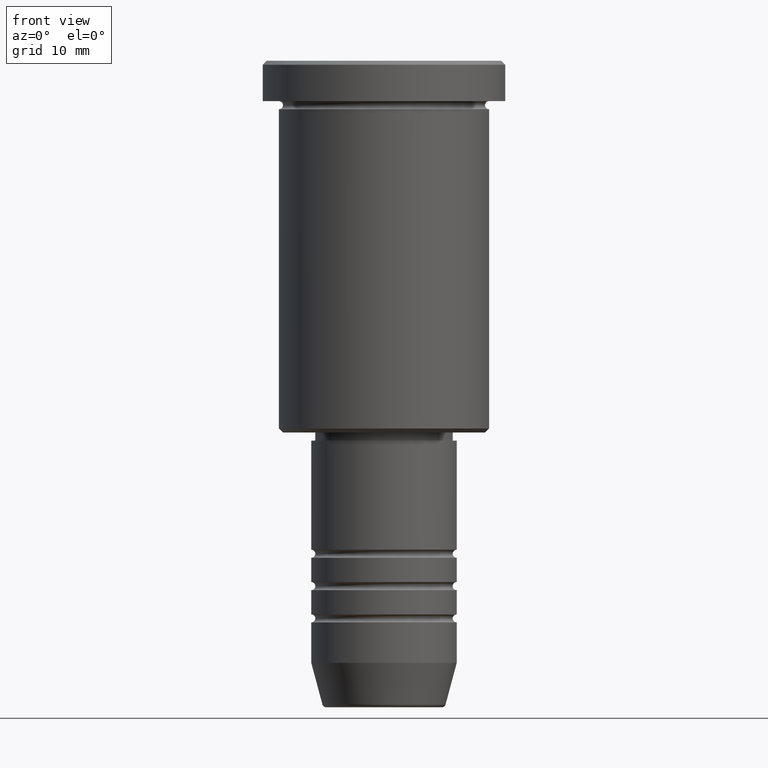
[diagram: clean part render]
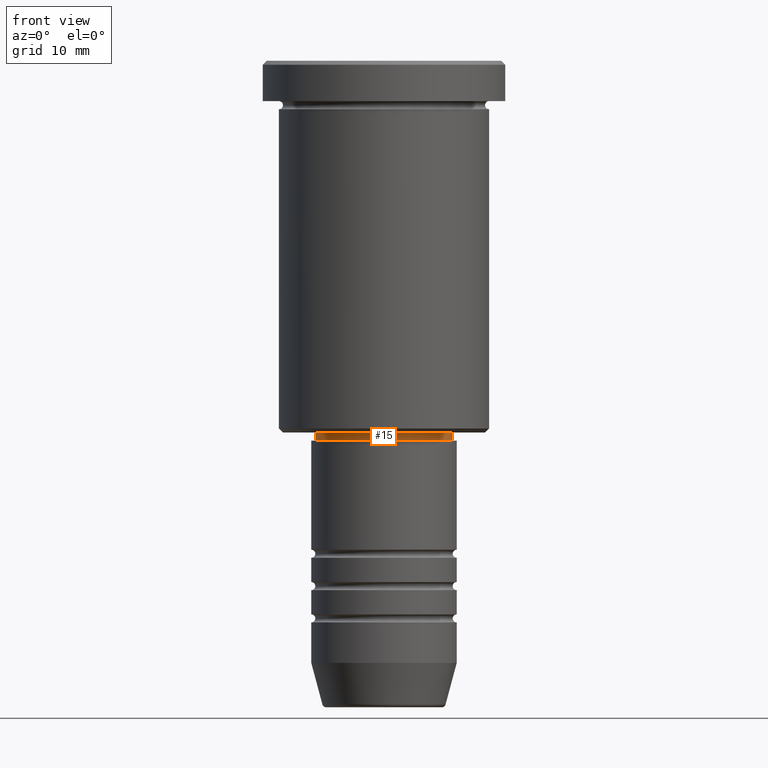
[diagram: same view with one face highlighted and labeled with its STEP entity id]
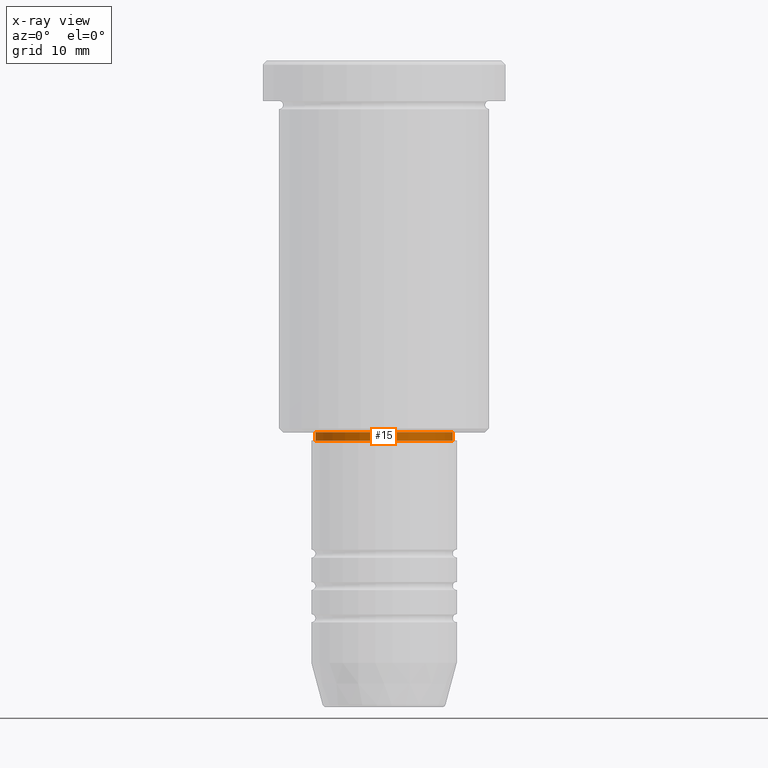
[diagram: x-ray of the same camera — body ghosted, the highlighted face saturated]
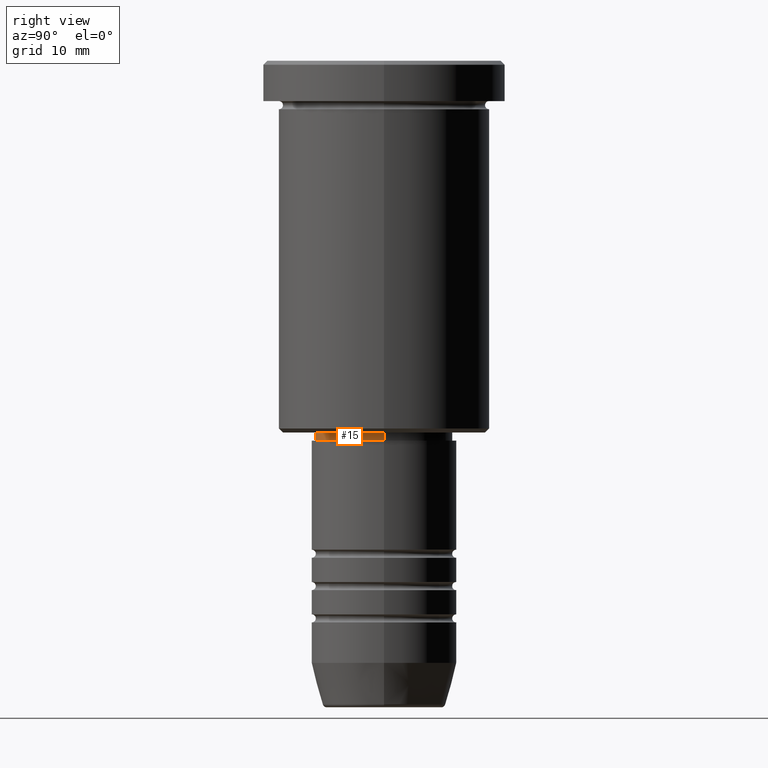
[diagram: same view with one face highlighted and labeled with its STEP entity id]
A machine part, front view. The second image highlights one B-rep face of the part: STEP entity #15.
The next image is the same camera in x-ray: the body ghosted, the highlighted face saturated — about 0% of this face is hidden behind the body in this view.
A second angle (right view) of the same face is appended — the face is thin or edge-on in the first view.
In plain terms, the highlighted cylindrical surface (partial cylindrical patch) has radius 8.5 mm, axis along (-0, -0, 1).
Its self-contained STEP definition (entity closure, byte-faithful):
#15 = ADVANCED_FACE ( 'NONE', ( #584 ), #520, .T. ) ;
#20 = CARTESIAN_POINT ( 'NONE',  ( 8.500000000000000000, 0.000000000000000000, 0.000000000000000000 ) ) ;
#31 = VECTOR ( 'NONE', #170, 1000.000000000000000 ) ;
#37 = EDGE_CURVE ( 'NONE', #913, #682, #839, .T. ) ;
#63 = DIRECTION ( 'NONE',  ( -0.000000000000000000, -0.000000000000000000, 1.000000000000000000 ) ) ;
#70 = CARTESIAN_POINT ( 'NONE',  ( 0.000000000000000000, 0.000000000000000000, 0.000000000000000000 ) ) ;
#99 = AXIS2_PLACEMENT_3D ( 'NONE', #70, #63, #428 ) ;
#127 = CARTESIAN_POINT ( 'NONE',  ( 0.000000000000000000, 0.000000000000000000, -47.00000000000000000 ) ) ;
#132 = VERTEX_POINT ( 'NONE', #569 ) ;
#170 = DIRECTION ( 'NONE',  ( -0.000000000000000000, -0.000000000000000000, 1.000000000000000000 ) ) ;
#185 = CIRCLE ( 'NONE', #436, 8.499999999999998224 ) ;
#223 = ORIENTED_EDGE ( 'NONE', *, *, #1183, .T. ) ;
#228 = ORIENTED_EDGE ( 'NONE', *, *, #37, .F. ) ;
#251 = CARTESIAN_POINT ( 'NONE',  ( -8.500000000000000000, 1.040949779275250140E-15, -46.00000000000000000 ) ) ;
#275 = LINE ( 'NONE', #20, #619 ) ;
#363 = DIRECTION ( 'NONE',  ( -0.000000000000000000, -0.000000000000000000, 1.000000000000000000 ) ) ;
#403 = DIRECTION ( 'NONE',  ( 1.000000000000000000, 0.000000000000000000, 0.000000000000000000 ) ) ;
#428 = DIRECTION ( 'NONE',  ( 1.000000000000000000, 0.000000000000000000, 0.000000000000000000 ) ) ;
#436 = AXIS2_PLACEMENT_3D ( 'NONE', #127, #857, #1147 ) ;
#461 = EDGE_CURVE ( 'NONE', #132, #913, #1094, .T. ) ;
#520 = CYLINDRICAL_SURFACE ( 'NONE', #99, 8.500000000000000000 ) ;
#558 = ORIENTED_EDGE ( 'NONE', *, *, #1072, .T. ) ;
#569 = CARTESIAN_POINT ( 'NONE',  ( -8.499999999999998224, 1.040949779275249943E-15, -47.00000000000000000 ) ) ;
#584 = FACE_OUTER_BOUND ( 'NONE', #1153, .T. ) ;
#619 = VECTOR ( 'NONE', #363, 1000.000000000000000 ) ;
#624 = CARTESIAN_POINT ( 'NONE',  ( -8.500000000000000000, 1.040949779275250140E-15, 0.000000000000000000 ) ) ;
#682 = VERTEX_POINT ( 'NONE', #845 ) ;
#758 = AXIS2_PLACEMENT_3D ( 'NONE', #787, #1156, #403 ) ;
#765 = VERTEX_POINT ( 'NONE', #1141 ) ;
#787 = CARTESIAN_POINT ( 'NONE',  ( 0.000000000000000000, 0.000000000000000000, -46.00000000000000000 ) ) ;
#839 = CIRCLE ( 'NONE', #758, 8.500000000000000000 ) ;
#845 = CARTESIAN_POINT ( 'NONE',  ( 8.500000000000000000, 0.000000000000000000, -46.00000000000000000 ) ) ;
#857 = DIRECTION ( 'NONE',  ( -0.000000000000000000, -0.000000000000000000, 1.000000000000000000 ) ) ;
#913 = VERTEX_POINT ( 'NONE', #251 ) ;
#1072 = EDGE_CURVE ( 'NONE', #765, #682, #275, .T. ) ;
#1094 = LINE ( 'NONE', #624, #31 ) ;
#1141 = CARTESIAN_POINT ( 'NONE',  ( 8.499999999999998224, 0.000000000000000000, -47.00000000000000000 ) ) ;
#1147 = DIRECTION ( 'NONE',  ( 1.000000000000000000, 0.000000000000000000, 0.000000000000000000 ) ) ;
#1153 = EDGE_LOOP ( 'NONE', ( #1167, #223, #558, #228 ) ) ;
#1156 = DIRECTION ( 'NONE',  ( -0.000000000000000000, -0.000000000000000000, 1.000000000000000000 ) ) ;
#1167 = ORIENTED_EDGE ( 'NONE', *, *, #461, .F. ) ;
#1183 = EDGE_CURVE ( 'NONE', #132, #765, #185, .T. ) ;